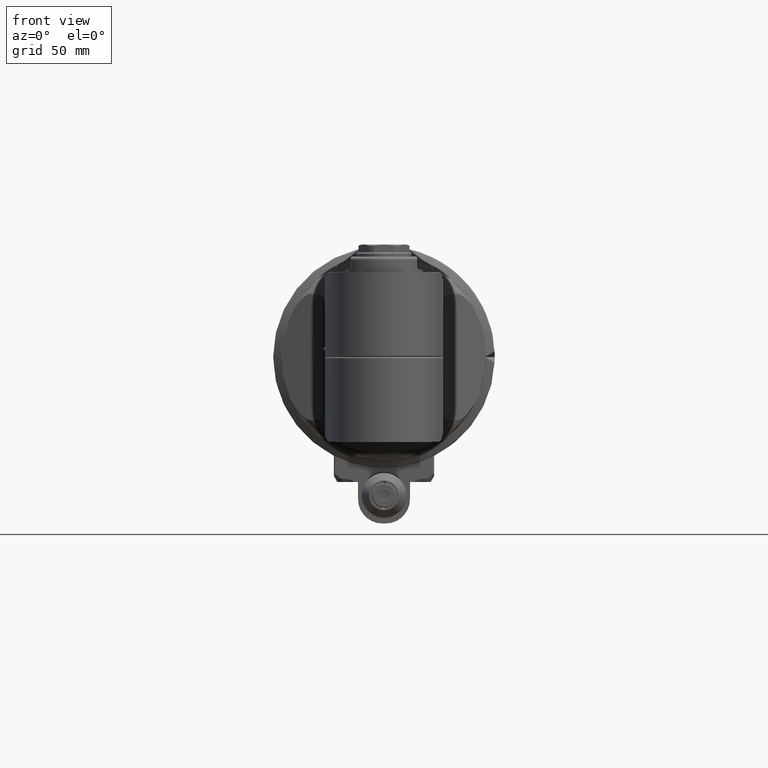
[diagram: clean part render]
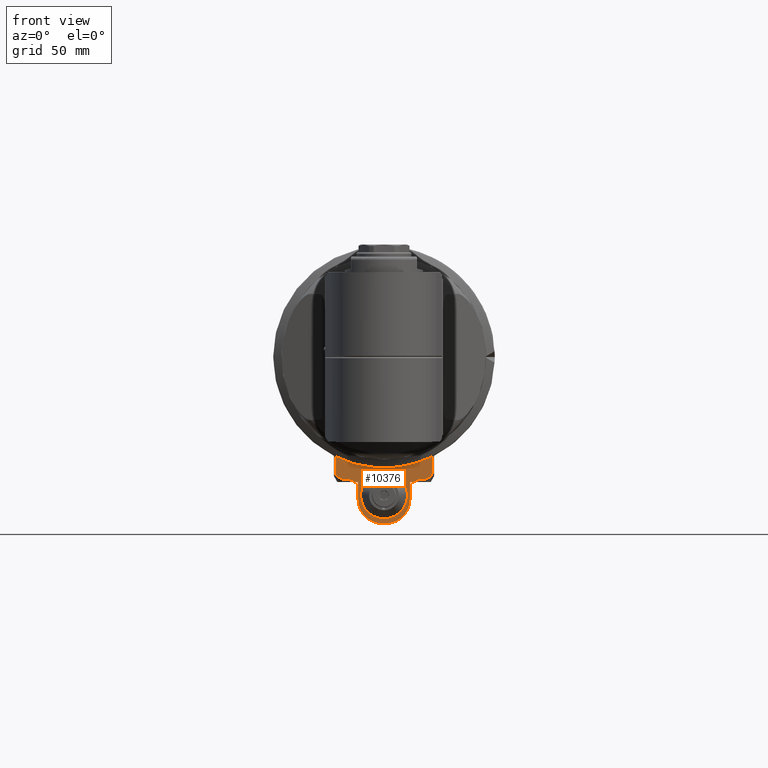
[diagram: same view with one face highlighted and labeled with its STEP entity id]
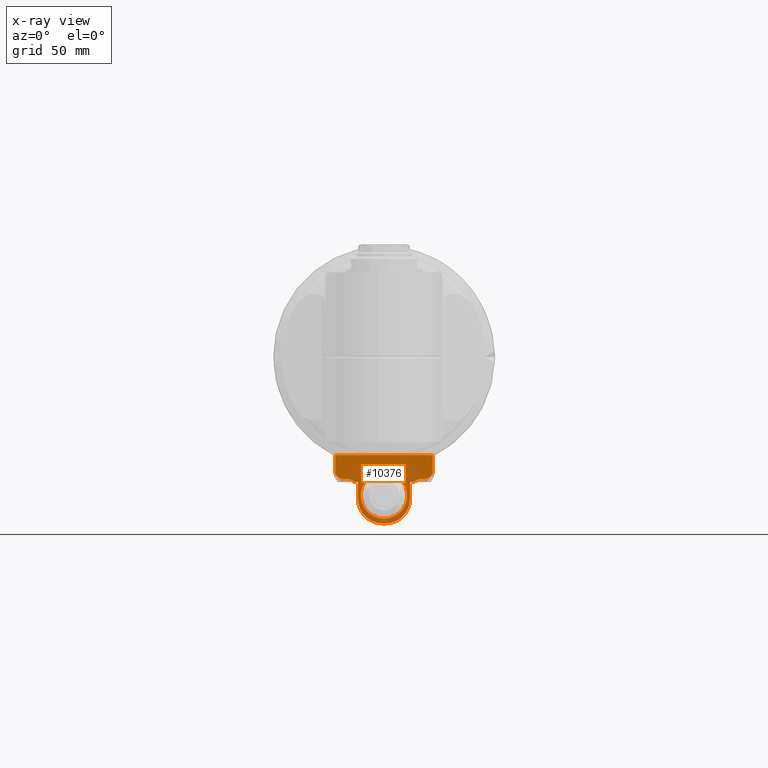
[diagram: x-ray of the same camera — body ghosted, the highlighted face saturated]
A machine part, front view. The second image highlights one B-rep face of the part: STEP entity #10376.
The next image is the same camera in x-ray: the body ghosted, the highlighted face saturated — about 0% of this face is hidden behind the body in this view.
In plain terms, the highlighted planar face has unit normal (0, 1, 0).
Its self-contained STEP definition (entity closure, byte-faithful):
#621=FACE_BOUND('',#2049,.T.);
#835=CIRCLE('',#11214,14.);
#836=CIRCLE('',#11215,14.);
#837=CIRCLE('',#11216,13.5);
#1390=FACE_OUTER_BOUND('',#2048,.T.);
#2048=EDGE_LOOP('',(#7541,#7542,#7543,#7544,#7545,#7546,#7547,#7548,#7549,
#7550,#7551,#7552,#7553,#7554,#7555,#7556));
#2049=EDGE_LOOP('',(#7557));
#2646=(
BOUNDED_CURVE()
B_SPLINE_CURVE(2,(#16571,#16572,#16573),.UNSPECIFIED.,.F.,.F.)
B_SPLINE_CURVE_WITH_KNOTS((3,3),(-4.78120637818785,-3.61632373543562),
 .UNSPECIFIED.)
CURVE()
GEOMETRIC_REPRESENTATION_ITEM()
RATIONAL_B_SPLINE_CURVE((1.60140651826581,1.67103285195852,1.67103285195852))
REPRESENTATION_ITEM('')
);
#2647=(
BOUNDED_CURVE()
B_SPLINE_CURVE(2,(#16589,#16590,#16591),.UNSPECIFIED.,.F.,.F.)
B_SPLINE_CURVE_WITH_KNOTS((3,3),(2.45144109268339,3.61632373543562),
 .UNSPECIFIED.)
CURVE()
GEOMETRIC_REPRESENTATION_ITEM()
RATIONAL_B_SPLINE_CURVE((1.60140651826581,1.67103285195852,1.67103285195852))
REPRESENTATION_ITEM('')
);
#2648=(
BOUNDED_CURVE()
B_SPLINE_CURVE(2,(#16595,#16596,#16597),.UNSPECIFIED.,.F.,.F.)
B_SPLINE_CURVE_WITH_KNOTS((3,3),(0.802084003550109,1.89472960778239),
 .UNSPECIFIED.)
CURVE()
GEOMETRIC_REPRESENTATION_ITEM()
RATIONAL_B_SPLINE_CURVE((1.71135239382398,2.06578511985151,2.06578511985151))
REPRESENTATION_ITEM('')
);
#2649=(
BOUNDED_CURVE()
B_SPLINE_CURVE(2,(#16602,#16603,#16604),.UNSPECIFIED.,.F.,.F.)
B_SPLINE_CURVE_WITH_KNOTS((3,3),(1.89472960778294,2.98737521182979),
 .UNSPECIFIED.)
CURVE()
GEOMETRIC_REPRESENTATION_ITEM()
RATIONAL_B_SPLINE_CURVE((2.06578511985184,2.06578511985184,1.71135239394469))
REPRESENTATION_ITEM('')
);
#2972=LINE('',#16544,#3639);
#2978=LINE('',#16575,#3645);
#2979=LINE('',#16577,#3646);
#2980=LINE('',#16581,#3647);
#2981=LINE('',#16585,#3648);
#2982=LINE('',#16587,#3649);
#2983=LINE('',#16593,#3650);
#2984=LINE('',#16598,#3651);
#2985=LINE('',#16600,#3652);
#2986=LINE('',#16605,#3653);
#3639=VECTOR('',#12868,56.);
#3645=VECTOR('',#12892,2.101021651726);
#3646=VECTOR('',#12893,10.);
#3647=VECTOR('',#12896,2.);
#3648=VECTOR('',#12899,10.);
#3649=VECTOR('',#12900,2.101021651725);
#3650=VECTOR('',#12901,2.000000230854);
#3651=VECTOR('',#12902,10.89819431263);
#3652=VECTOR('',#12903,10.89819431378);
#3653=VECTOR('',#12904,2.000000230855);
#4393=VERTEX_POINT('',#16542);
#4394=VERTEX_POINT('',#16543);
#4405=VERTEX_POINT('',#16569);
#4406=VERTEX_POINT('',#16570);
#4407=VERTEX_POINT('',#16574);
#4408=VERTEX_POINT('',#16576);
#4409=VERTEX_POINT('',#16578);
#4410=VERTEX_POINT('',#16580);
#4411=VERTEX_POINT('',#16582);
#4412=VERTEX_POINT('',#16584);
#4413=VERTEX_POINT('',#16586);
#4414=VERTEX_POINT('',#16588);
#4415=VERTEX_POINT('',#16592);
#4416=VERTEX_POINT('',#16594);
#4417=VERTEX_POINT('',#16599);
#4418=VERTEX_POINT('',#16601);
#4419=VERTEX_POINT('',#16606);
#5565=EDGE_CURVE('',#4393,#4394,#2972,.T.);
#5579=EDGE_CURVE('',#4405,#4406,#2646,.T.);
#5580=EDGE_CURVE('',#4405,#4407,#2978,.T.);
#5581=EDGE_CURVE('',#4408,#4407,#2979,.T.);
#5582=EDGE_CURVE('',#4408,#4409,#835,.T.);
#5583=EDGE_CURVE('',#4410,#4409,#2980,.T.);
#5584=EDGE_CURVE('',#4410,#4411,#836,.T.);
#5585=EDGE_CURVE('',#4412,#4411,#2981,.T.);
#5586=EDGE_CURVE('',#4413,#4412,#2982,.T.);
#5587=EDGE_CURVE('',#4413,#4414,#2647,.T.);
#5588=EDGE_CURVE('',#4414,#4415,#2983,.T.);
#5589=EDGE_CURVE('',#4416,#4415,#2648,.T.);
#5590=EDGE_CURVE('',#4394,#4416,#2984,.T.);
#5591=EDGE_CURVE('',#4417,#4393,#2985,.T.);
#5592=EDGE_CURVE('',#4418,#4417,#2649,.T.);
#5593=EDGE_CURVE('',#4406,#4418,#2986,.T.);
#5594=EDGE_CURVE('',#4419,#4419,#837,.T.);
#7541=ORIENTED_EDGE('',*,*,#5579,.F.);
#7542=ORIENTED_EDGE('',*,*,#5580,.T.);
#7543=ORIENTED_EDGE('',*,*,#5581,.F.);
#7544=ORIENTED_EDGE('',*,*,#5582,.T.);
#7545=ORIENTED_EDGE('',*,*,#5583,.F.);
#7546=ORIENTED_EDGE('',*,*,#5584,.T.);
#7547=ORIENTED_EDGE('',*,*,#5585,.F.);
#7548=ORIENTED_EDGE('',*,*,#5586,.F.);
#7549=ORIENTED_EDGE('',*,*,#5587,.T.);
#7550=ORIENTED_EDGE('',*,*,#5588,.T.);
#7551=ORIENTED_EDGE('',*,*,#5589,.F.);
#7552=ORIENTED_EDGE('',*,*,#5590,.F.);
#7553=ORIENTED_EDGE('',*,*,#5565,.F.);
#7554=ORIENTED_EDGE('',*,*,#5591,.F.);
#7555=ORIENTED_EDGE('',*,*,#5592,.F.);
#7556=ORIENTED_EDGE('',*,*,#5593,.F.);
#7557=ORIENTED_EDGE('',*,*,#5594,.T.);
#10033=PLANE('',#11213);
#10376=ADVANCED_FACE('',(#1390,#621),#10033,.F.);
#11213=AXIS2_PLACEMENT_3D('',#16568,#12890,#12891);
#11214=AXIS2_PLACEMENT_3D('',#16579,#12894,#12895);
#11215=AXIS2_PLACEMENT_3D('',#16583,#12897,#12898);
#11216=AXIS2_PLACEMENT_3D('',#16607,#12905,#12906);
#12868=DIRECTION('',(1.,0.,0.));
#12890=DIRECTION('center_axis',(0.,1.,0.));
#12891=DIRECTION('ref_axis',(0.,0.,1.));
#12892=DIRECTION('',(1.,0.,0.));
#12893=DIRECTION('',(0.,0.,1.));
#12894=DIRECTION('center_axis',(0.,-1.,0.));
#12895=DIRECTION('ref_axis',(-1.,0.,0.));
#12896=DIRECTION('',(-1.,0.,0.));
#12897=DIRECTION('center_axis',(0.,-1.,0.));
#12898=DIRECTION('ref_axis',(0.,0.,-1.));
#12899=DIRECTION('',(0.,0.,-1.));
#12900=DIRECTION('',(-1.,0.,0.));
#12901=DIRECTION('',(1.,1.243449644052E-14,-2.842170614977E-14));
#12902=DIRECTION('',(1.193516107229E-9,6.713915828753E-11,-1.));
#12903=DIRECTION('',(1.102172440227E-9,-6.199958357225E-11,1.));
#12904=DIRECTION('',(-1.,1.953992297796E-14,-3.197441941848E-14));
#12905=DIRECTION('center_axis',(0.,1.,0.));
#12906=DIRECTION('ref_axis',(0.,0.,-1.));
#16542=CARTESIAN_POINT('',(-28.,7.999999769231,-56.75));
#16543=CARTESIAN_POINT('',(28.,7.999999769231,-56.75));
#16544=CARTESIAN_POINT('',(-28.,7.999999769231,-56.75));
#16568=CARTESIAN_POINT('Origin',(0.,7.999999769231,-55.75));
#16569=CARTESIAN_POINT('',(-17.10102165173,7.999999769231,-72.25));
#16570=CARTESIAN_POINT('',(-22.,7.999999769231,-70.51795003158));
#16571=CARTESIAN_POINT('Ctrl Pts',(-17.1010216517443,7.999999769231,-72.2499999999893));
#16572=CARTESIAN_POINT('Ctrl Pts',(-19.6525728232857,7.999999769231,-70.5179500315845));
#16573=CARTESIAN_POINT('Ctrl Pts',(-22.,7.999999769231,-70.5179500315845));
#16574=CARTESIAN_POINT('',(-15.,7.999999769231,-72.25));
#16575=CARTESIAN_POINT('',(-17.10102165173,7.999999769231,-72.25));
#16576=CARTESIAN_POINT('',(-15.,7.999999769231,-82.25));
#16577=CARTESIAN_POINT('',(-15.,7.999999769231,-82.25));
#16578=CARTESIAN_POINT('',(-1.,7.999999769231,-96.25));
#16579=CARTESIAN_POINT('Origin',(-1.,7.999999769231,-82.25));
#16580=CARTESIAN_POINT('',(1.,7.999999769231,-96.25));
#16581=CARTESIAN_POINT('',(1.,7.999999769231,-96.25));
#16582=CARTESIAN_POINT('',(15.,7.999999769231,-82.25));
#16583=CARTESIAN_POINT('Origin',(1.,7.999999769231,-82.25));
#16584=CARTESIAN_POINT('',(15.,7.999999769231,-72.25));
#16585=CARTESIAN_POINT('',(15.,7.999999769231,-72.25));
#16586=CARTESIAN_POINT('',(17.10102165173,7.999999769231,-72.25));
#16587=CARTESIAN_POINT('',(17.10102165173,7.999999769231,-72.25));
#16588=CARTESIAN_POINT('',(22.,7.999999769231,-70.51795003158));
#16589=CARTESIAN_POINT('Ctrl Pts',(17.1010216517443,7.999999769231,-72.2499999999893));
#16590=CARTESIAN_POINT('Ctrl Pts',(19.6525728232857,7.999999769231,-70.5179500315845));
#16591=CARTESIAN_POINT('Ctrl Pts',(22.,7.999999769231,-70.5179500315845));
#16592=CARTESIAN_POINT('',(24.00000023085,7.999999769231,-70.51795003158));
#16593=CARTESIAN_POINT('',(22.,7.999999769231,-70.51795003158));
#16594=CARTESIAN_POINT('',(28.00000001301,7.999999769961,-67.64819431263));
#16595=CARTESIAN_POINT('Ctrl Pts',(28.0000000125725,7.999999769231,-67.6481943122728));
#16596=CARTESIAN_POINT('Ctrl Pts',(25.6568543576331,7.999999769231,-70.5179500315753));
#16597=CARTESIAN_POINT('Ctrl Pts',(24.00000023085,7.999999769231,-70.5179500315753));
#16598=CARTESIAN_POINT('',(28.,7.999999769231,-56.75));
#16599=CARTESIAN_POINT('',(-28.00000001201,7.999999769911,-67.64819431378));
#16600=CARTESIAN_POINT('',(-28.00000001201,7.999999769911,-67.64819431378));
#16601=CARTESIAN_POINT('',(-24.00000023085,7.999999769231,-70.51795003158));
#16602=CARTESIAN_POINT('Ctrl Pts',(-24.00000023085,7.999999769231,-70.5179500315799));
#16603=CARTESIAN_POINT('Ctrl Pts',(-25.6568543573516,7.999999769231,-70.5179500315799));
#16604=CARTESIAN_POINT('Ctrl Pts',(-28.0000000116114,7.999999769231,-67.6481943134545));
#16605=CARTESIAN_POINT('',(-22.,7.999999769231,-70.51795003158));
#16606=CARTESIAN_POINT('',(0.,7.999999769231,-66.5));
#16607=CARTESIAN_POINT('Origin',(0.,7.999999769231,-80.));